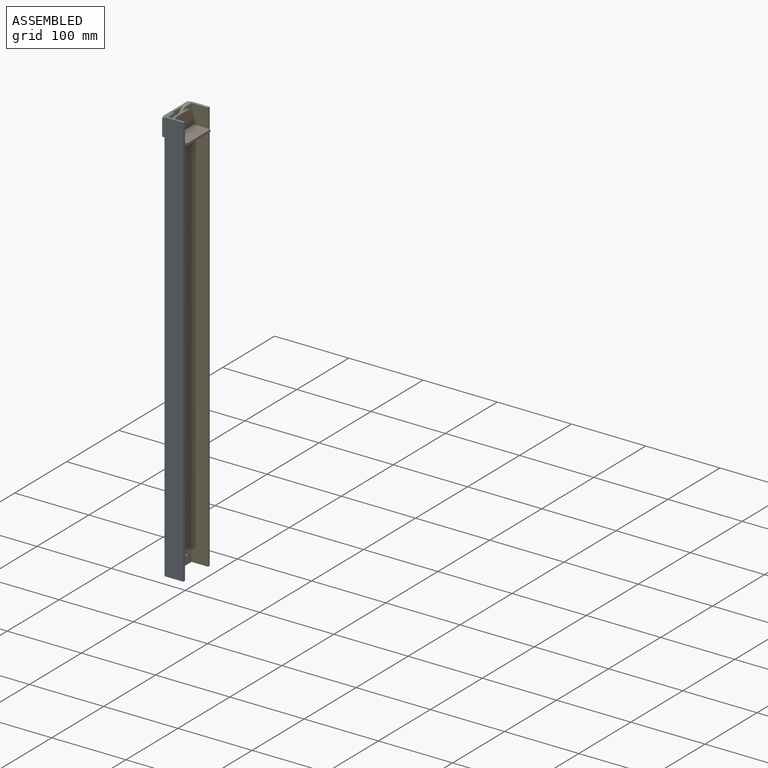
[diagram: assembled view]
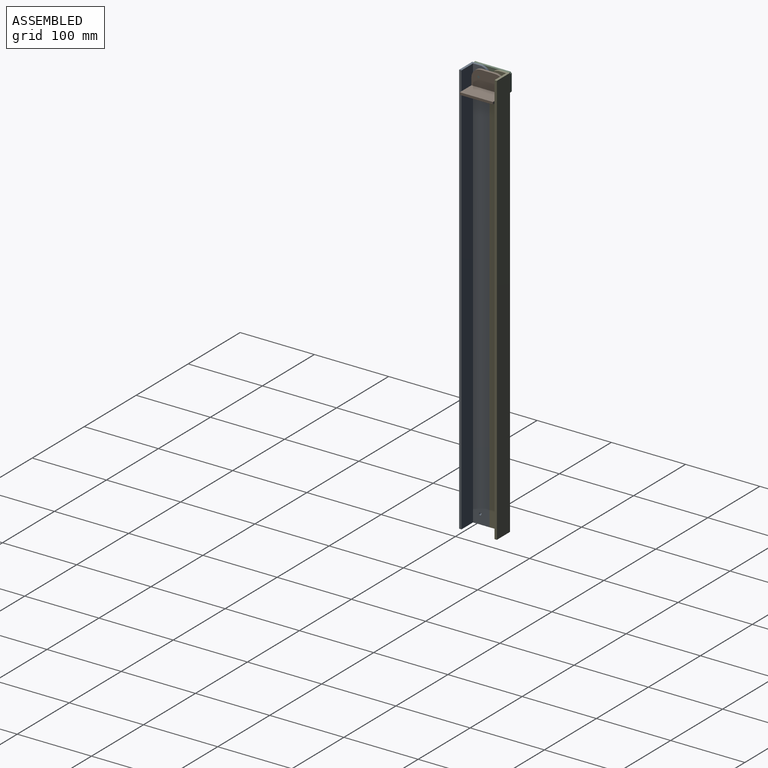
[diagram: assembled view, second angle]
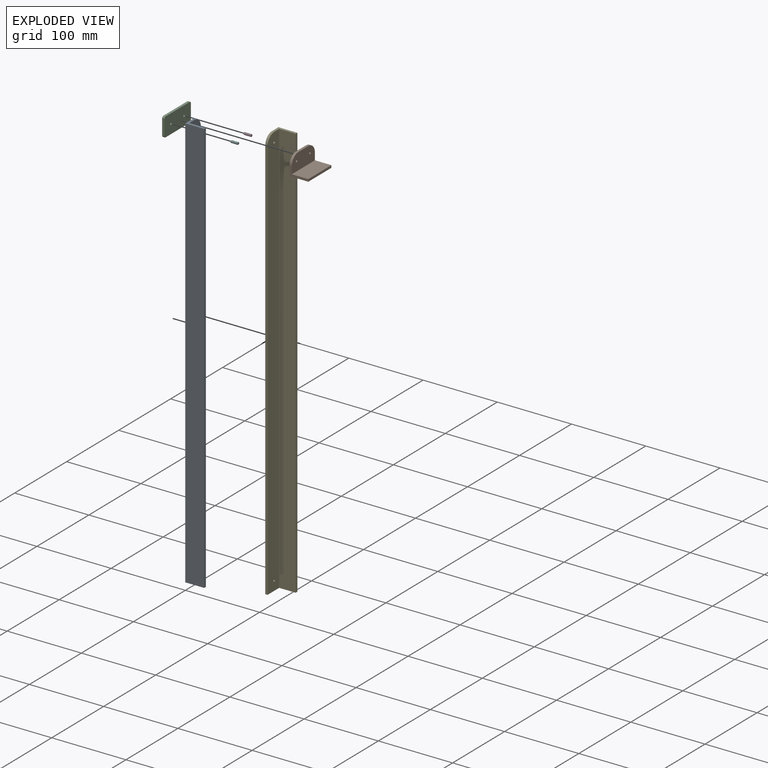
[diagram: exploded view]
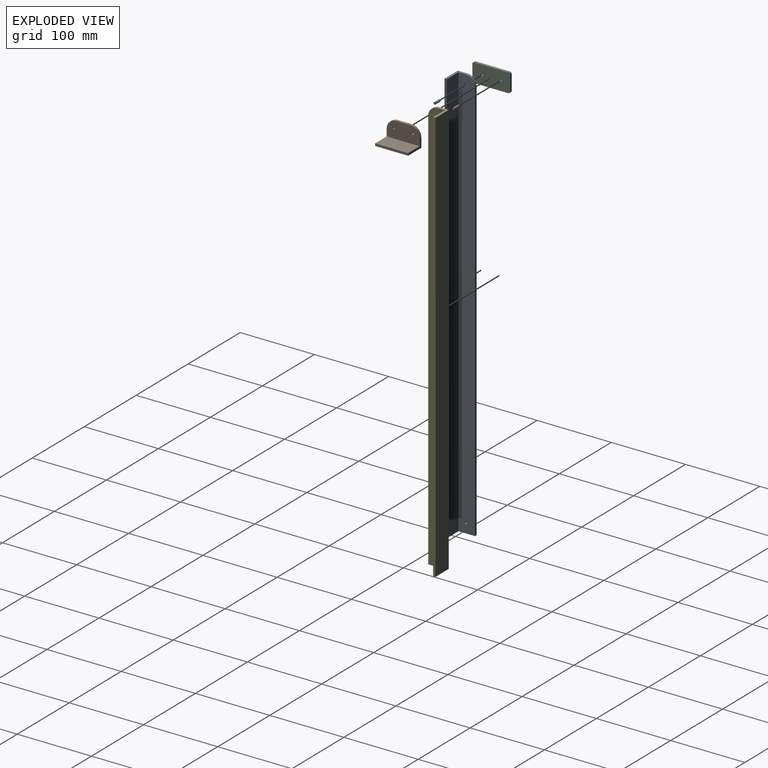
[diagram: exploded view, second angle]
ASSEMBLY  parts=6 mates=5
PART A: 11 faces, bbox 25.4x558.8x25.4 mm
  f0: plane 558.8x22.23mm, normal (0,0,1), area 12368.9mm2, adj f1,f5,f6,f7,f8,f9,f10
  f1: plane 558.8x22.23mm, normal (1,0,0), area 12419.3mm2, adj f0,f2,f6,f7
  f2: plane 558.8x3.18mm, normal (0,0,1), area 1774.2mm2, adj f1,f3,f6,f7
  f3: plane 558.8x25.4mm, normal (-1,0,0), area 14193.5mm2, adj f2,f4,f6,f7
  f4: plane 558.8x25.4mm, normal (0,0,-1), area 14143.1mm2, adj f3,f5,f6,f7,f8,f9,f10
  f5: plane 546.1x3.18mm, normal (1,0,0), area 1733.9mm2, adj f0,f4,f6,f10
  f6: plane 25.4x25.4mm, normal (0,-1,0), area 151.2mm2, adj f0,f1,f2,f3,f4,f5
  f7: plane 25.4x12.7mm, normal (0,1,0), area 110.9mm2, adj f0,f1,f2,f3,f4,f10
  f8: cylinder r=1.59mm len=3.18mm, axis (0,0,-1), area 31.7mm2, adj f0,f4
  f9: cylinder r=1.59mm len=3.18mm, axis (0,0,-1), area 31.7mm2, adj f0,f4
  f10: cylinder r=12.7mm len=12.7mm, axis (0,0,1), area 63.3mm2, adj f0,f4,f5,f7
PART B: 12 faces, bbox 25.4x44.5x25.4 mm
  f0: plane 44.45x22.23mm, normal (1,0,0), area 902.8mm2, adj f2,f3,f6,f7,f8,f9,f10,f11
  f1: plane 44.45x25.4mm, normal (-1,0,0), area 1044mm2, adj f3,f4,f6,f7,f8,f9,f10,f11
  f2: plane 44.45x22.23mm, normal (0,0,1), area 987.9mm2, adj f0,f5,f6,f7
  f3: plane 19.05x3.18mm, normal (0,0,1), area 60.5mm2, adj f0,f1,f10,f11
  f4: plane 44.45x25.4mm, normal (0,0,-1), area 1129mm2, adj f1,f5,f6,f7
  f5: plane 44.45x3.18mm, normal (1,0,0), area 141.1mm2, adj f2,f4,f6,f7
  f6: plane 25.4x12.7mm, normal (0,-1,0), area 110.9mm2, adj f0,f1,f2,f4,f5,f11
  f7: plane 25.4x12.7mm, normal (0,1,0), area 110.9mm2, adj f0,f1,f2,f4,f5,f10
  f8: cylinder r=1.59mm len=3.18mm, axis (1,0,0), area 31.7mm2, adj f0,f1
  f9: cylinder r=1.59mm len=3.18mm, axis (1,0,0), area 31.7mm2, adj f0,f1
  f10: cylinder r=12.7mm len=12.7mm, axis (-1,0,0), area 63.3mm2, adj f0,f1,f3,f7
  f11: cylinder r=12.7mm len=12.7mm, axis (1,0,0), area 63.3mm2, adj f0,f1,f3,f6
PART C: 12 faces, bbox 25.4x3.2x50.8 mm
  f0: plane 22.23x3.18mm, normal (0,0,-1), area 70.6mm2, adj f6,f7,f8,f9
  f1: plane 47.63x3.18mm, normal (1,0,0), area 151.2mm2, adj f6,f7,f9,f11
  f2: plane 22.23x3.18mm, normal (0,0,1), area 70.6mm2, adj f6,f7,f10,f11
  f3: cylinder r=1.59mm len=3.18mm, axis (0,1,0), area 31.7mm2, adj f6,f7
  f4: cylinder r=1.59mm len=3.18mm, axis (0,1,0), area 31.7mm2, adj f6,f7
  f5: plane 47.63x3.18mm, normal (-1,0,0), area 151.2mm2, adj f6,f7,f8,f10
  f6: plane 50.8x25.4mm, normal (0,-1,0), area 1269.4mm2, adj f0,f1,f2,f3,f4,f5,f8,f9
  f7: plane 50.8x25.4mm, normal (0,1,0), area 1269.4mm2, adj f0,f1,f2,f3,f4,f5,f8,f9
  f8: plane 3.18x1.59mm, normal (-0.71,0,-0.71), area 7.1mm2, adj f0,f5,f6,f7
  f9: plane 3.18x1.59mm, normal (0.71,0,-0.71), area 7.1mm2, adj f0,f1,f6,f7
  f10: plane 3.18x1.59mm, normal (-0.71,0,0.71), area 7.1mm2, adj f2,f5,f6,f7
  f11: plane 3.18x1.59mm, normal (0.71,0,0.71), area 7.1mm2, adj f1,f2,f6,f7
PART D: 3 faces, bbox 3.2x3.2x9.5 mm
  f0: cylinder r=1.59mm len=9.53mm, axis (0,0,-1), area 95mm2, adj f1,f2
  f1: plane 3.18x3.18mm, normal (0,0,1), area 7.9mm2, adj f0
  f2: plane 3.18x3.18mm, normal (0,0,-1), area 7.9mm2, adj f0
PART E: 11 faces, bbox 25.4x558.8x25.4 mm
  f0: plane 558.8x22.23mm, normal (0,0,1), area 12419.3mm2, adj f1,f5,f6,f7
  f1: plane 558.8x22.23mm, normal (1,0,0), area 12368.9mm2, adj f0,f2,f6,f7,f8,f9,f10
  f2: plane 546.1x3.18mm, normal (0,0,1), area 1733.9mm2, adj f1,f3,f6,f10
  f3: plane 558.8x25.4mm, normal (-1,0,0), area 14143.1mm2, adj f2,f4,f6,f7,f8,f9,f10
  f4: plane 558.8x25.4mm, normal (0,0,-1), area 14193.5mm2, adj f3,f5,f6,f7
  f5: plane 558.8x3.18mm, normal (1,0,0), area 1774.2mm2, adj f0,f4,f6,f7
  f6: plane 25.4x25.4mm, normal (0,-1,0), area 151.2mm2, adj f0,f1,f2,f3,f4,f5
  f7: plane 25.4x12.7mm, normal (0,1,0), area 110.9mm2, adj f0,f1,f3,f4,f5,f10
  f8: cylinder r=1.59mm len=3.18mm, axis (-1,0,0), area 31.7mm2, adj f1,f3
  f9: cylinder r=1.59mm len=3.18mm, axis (-1,0,0), area 31.7mm2, adj f1,f3
  f10: cylinder r=12.7mm len=12.7mm, axis (-1,0,0), area 63.3mm2, adj f1,f2,f3,f7
PART F: same geometry as D
PLACE A rot(axis=(0.58,0.58,0.58),120deg) t=(-29.66,-97.84,44.13)mm
PLACE B t=(-26.49,-50.21,15.56)mm
PLACE C rot(axis=(0.58,-0.58,0.58),120deg) t=(-32.84,-72.44,31.43)mm fixed
PLACE D rot(axis=(0,-1,0),90deg) t=(-23.31,-59.74,31.43)mm
PLACE E rot(axis=(1,0,0),90deg) t=(-29.66,-47.04,44.13)mm
PLACE F rot(axis=(0,-1,0),90deg) t=(-23.31,-85.14,31.43)mm
MATE revolute E.f8 <-> C.f3  axis (-1,0,0) through (-29.66,-59.74,31.43)mm
MATE fastened F.f0 <-> C.f4  axis (-1,0,0) through (-32.84,-85.14,31.43)mm
MATE fastened B.f8 <-> D.f0  axis (1,0,0) through (-23.31,-59.74,31.43)mm
MATE revolute A.f8 <-> C.f4  axis (-1,0,0) through (-29.66,-85.14,31.43)mm
MATE fastened D.f0 <-> C.f3  axis (-1,0,0) through (-32.84,-59.74,31.43)mm
